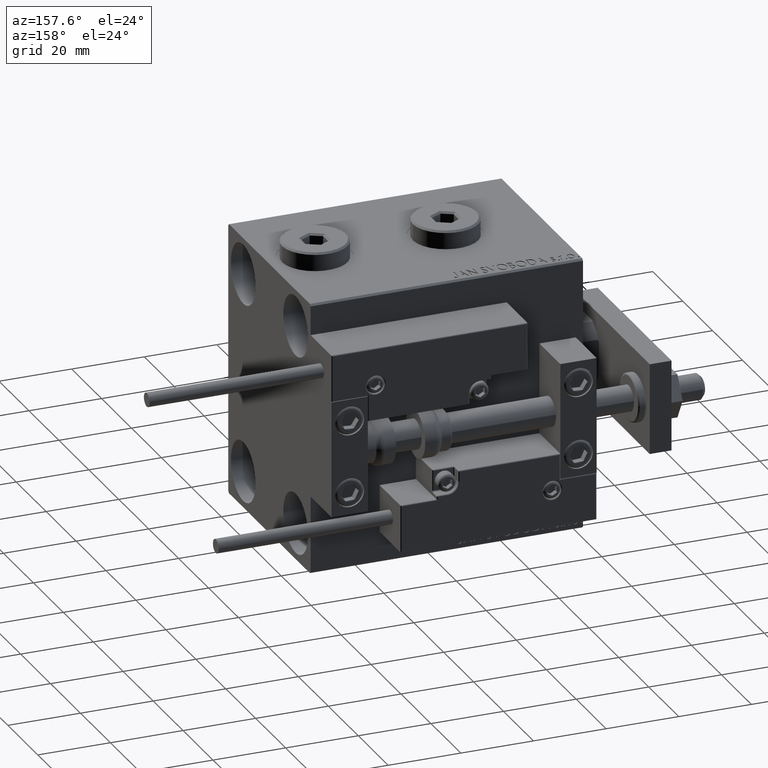
[diagram: clean part render]
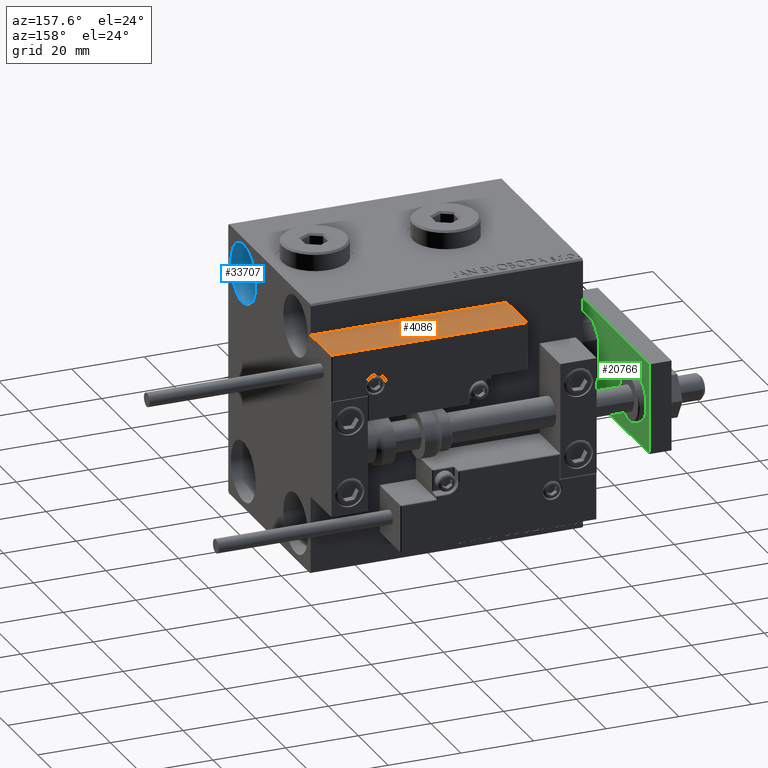
[diagram: same view with three faces highlighted in distinct colors, each labeled with its STEP entity id]
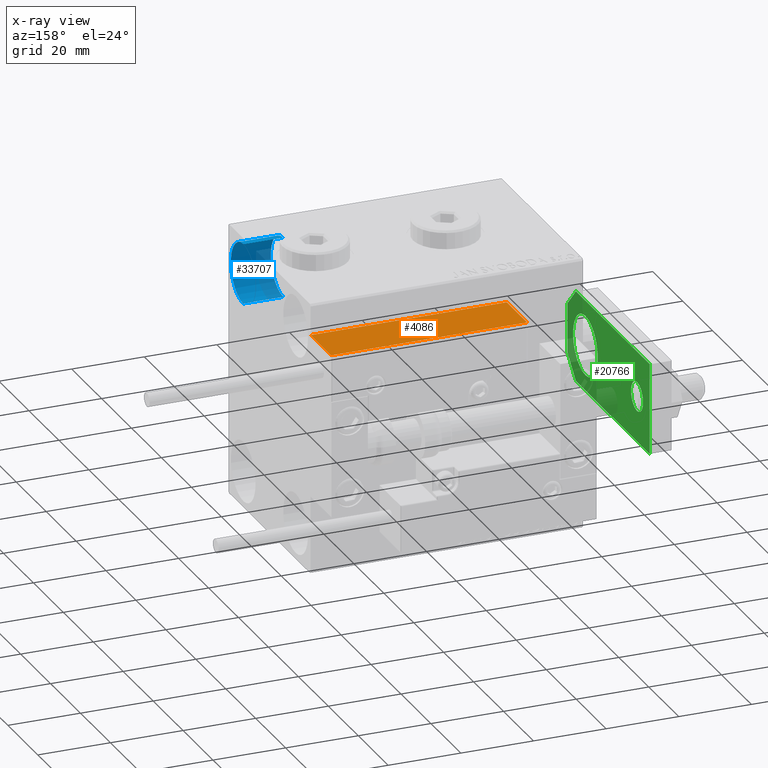
[diagram: x-ray of the same camera — body ghosted, the three highlighted faces saturated]
A machine part, auxiliary view with three faces highlighted in distinct colors.
The next image is the same camera in x-ray (body ghosted, the three faces saturated) — at least one of them is partly hidden behind the body in this view.
Their STEP definitions:

[orange] entity #4086 — the highlighted planar face has unit normal (-0, -0, -1).
#620 = VECTOR ( 'NONE', #38446, 1000.000000000000000 ) ;
#1401 = EDGE_CURVE ( 'NONE', #8684, #46098, #35144, .T. ) ;
#2224 = ORIENTED_EDGE ( 'NONE', *, *, #34071, .T. ) ;
#3558 = PLANE ( 'NONE',  #46044 ) ;
#4086 = ADVANCED_FACE ( 'NONE', ( #19187 ), #3558, .F. ) ;
#4357 = CARTESIAN_POINT ( 'NONE',  ( 27.00000000000006395, 20.00000000000001776, 13.70000000000000107 ) ) ;
#8684 = VERTEX_POINT ( 'NONE', #27659 ) ;
#8692 = CARTESIAN_POINT ( 'NONE',  ( -26.99999999999993605, 20.00000000000002132, 13.70000000000000107 ) ) ;
#15680 = LINE ( 'NONE', #38867, #16432 ) ;
#16236 = CARTESIAN_POINT ( 'NONE',  ( 27.00000000000006395, 20.00000000000001776, 0.000000000000000000 ) ) ;
#16432 = VECTOR ( 'NONE', #32051, 1000.000000000000000 ) ;
#16572 = VERTEX_POINT ( 'NONE', #8692 ) ;
#19018 = CARTESIAN_POINT ( 'NONE',  ( 27.00000000000006395, 20.00000000000001776, 14.00000000000000000 ) ) ;
#19187 = FACE_OUTER_BOUND ( 'NONE', #22357, .T. ) ;
#19434 = CARTESIAN_POINT ( 'NONE',  ( 27.00000000000006395, 20.00000000000001776, 14.00000000000000000 ) ) ;
#22357 = EDGE_LOOP ( 'NONE', ( #30367, #38868, #38669, #2224 ) ) ;
#22560 = LINE ( 'NONE', #42646, #620 ) ;
#24666 = CARTESIAN_POINT ( 'NONE',  ( -26.99999999999993605, 20.00000000000002132, 0.000000000000000000 ) ) ;
#27001 = DIRECTION ( 'NONE',  ( -6.424901762877063495E-17, -1.000000000000000000, 0.000000000000000000 ) ) ;
#27659 = CARTESIAN_POINT ( 'NONE',  ( 27.00000000000006395, 20.00000000000001776, 13.70000000000000107 ) ) ;
#30367 = ORIENTED_EDGE ( 'NONE', *, *, #51426, .F. ) ;
#31745 = VECTOR ( 'NONE', #43743, 1000.000000000000000 ) ;
#32051 = DIRECTION ( 'NONE',  ( -0.000000000000000000, -0.000000000000000000, -1.000000000000000000 ) ) ;
#34071 = EDGE_CURVE ( 'NONE', #46098, #43761, #22560, .T. ) ;
#35144 = LINE ( 'NONE', #19018, #31745 ) ;
#36647 = LINE ( 'NONE', #4357, #40369 ) ;
#38446 = DIRECTION ( 'NONE',  ( -1.000000000000000000, 6.424901762877062263E-17, 0.000000000000000000 ) ) ;
#38669 = ORIENTED_EDGE ( 'NONE', *, *, #1401, .T. ) ;
#38867 = CARTESIAN_POINT ( 'NONE',  ( -26.99999999999993605, 20.00000000000002132, 14.00000000000000000 ) ) ;
#38868 = ORIENTED_EDGE ( 'NONE', *, *, #46945, .T. ) ;
#40369 = VECTOR ( 'NONE', #44228, 1000.000000000000000 ) ;
#42646 = CARTESIAN_POINT ( 'NONE',  ( 27.00000000000006395, 20.00000000000001776, 0.000000000000000000 ) ) ;
#43743 = DIRECTION ( 'NONE',  ( -0.000000000000000000, -0.000000000000000000, -1.000000000000000000 ) ) ;
#43761 = VERTEX_POINT ( 'NONE', #24666 ) ;
#44228 = DIRECTION ( 'NONE',  ( 1.000000000000000000, -6.424901762877063495E-17, -0.000000000000000000 ) ) ;
#46044 = AXIS2_PLACEMENT_3D ( 'NONE', #19434, #27001, #46065 ) ;
#46065 = DIRECTION ( 'NONE',  ( 1.000000000000000000, -6.424901762877063495E-17, 0.000000000000000000 ) ) ;
#46098 = VERTEX_POINT ( 'NONE', #16236 ) ;
#46945 = EDGE_CURVE ( 'NONE', #16572, #8684, #36647, .T. ) ;
#51426 = EDGE_CURVE ( 'NONE', #16572, #43761, #15680, .T. ) ;

[blue] entity #33707 — the highlighted cylindrical surface (edge-blend (fillet) strip) has radius 8.25 mm, axis along (1, 0, 0).
#585 = CYLINDRICAL_SURFACE ( 'NONE', #48874, 8.249999999999996447 ) ;
#2178 = VECTOR ( 'NONE', #41681, 1000.000000000000000 ) ;
#3280 = CARTESIAN_POINT ( 'NONE',  ( 75.00000000000000000, -17.49999999999999645, 35.74999999999999289 ) ) ;
#9137 = EDGE_CURVE ( 'NONE', #43193, #22597, #15434, .T. ) ;
#9918 = CARTESIAN_POINT ( 'NONE',  ( 64.00000000000000000, -17.49999999999999645, 19.25000000000000000 ) ) ;
#10473 = AXIS2_PLACEMENT_3D ( 'NONE', #27368, #11739, #23691 ) ;
#10570 = CARTESIAN_POINT ( 'NONE',  ( 75.00000000000000000, -17.49999999999999645, 19.25000000000000000 ) ) ;
#11739 = DIRECTION ( 'NONE',  ( -1.000000000000000000, -0.000000000000000000, -0.000000000000000000 ) ) ;
#12261 = LINE ( 'NONE', #44307, #42473 ) ;
#12542 = ORIENTED_EDGE ( 'NONE', *, *, #45129, .T. ) ;
#15078 = ORIENTED_EDGE ( 'NONE', *, *, #38951, .T. ) ;
#15434 = CIRCLE ( 'NONE', #10473, 8.249999999999992895 ) ;
#16083 = CARTESIAN_POINT ( 'NONE',  ( 64.00000000000000000, -17.49999999999999645, 27.49999999999999645 ) ) ;
#16465 = CARTESIAN_POINT ( 'NONE',  ( 64.00000000000000000, -17.49999999999999645, 27.49999999999999645 ) ) ;
#16610 = DIRECTION ( 'NONE',  ( 0.000000000000000000, 0.000000000000000000, 1.000000000000000000 ) ) ;
#16935 = LINE ( 'NONE', #9918, #2178 ) ;
#17835 = CARTESIAN_POINT ( 'NONE',  ( 64.00000000000000000, -17.49999999999999645, 19.25000000000000000 ) ) ;
#18173 = ORIENTED_EDGE ( 'NONE', *, *, #47903, .F. ) ;
#20094 = FACE_OUTER_BOUND ( 'NONE', #34863, .T. ) ;
#22295 = AXIS2_PLACEMENT_3D ( 'NONE', #16083, #24148, #16610 ) ;
#22597 = VERTEX_POINT ( 'NONE', #3280 ) ;
#23691 = DIRECTION ( 'NONE',  ( 0.000000000000000000, 0.000000000000000000, 1.000000000000000000 ) ) ;
#24148 = DIRECTION ( 'NONE',  ( -1.000000000000000000, -0.000000000000000000, -0.000000000000000000 ) ) ;
#25981 = ORIENTED_EDGE ( 'NONE', *, *, #9137, .F. ) ;
#27368 = CARTESIAN_POINT ( 'NONE',  ( 75.00000000000000000, -17.49999999999999645, 27.49999999999999645 ) ) ;
#28939 = CIRCLE ( 'NONE', #22295, 8.249999999999992895 ) ;
#31808 = DIRECTION ( 'NONE',  ( 0.000000000000000000, 0.000000000000000000, -1.000000000000000000 ) ) ;
#32067 = DIRECTION ( 'NONE',  ( 1.000000000000000000, -0.000000000000000000, -0.000000000000000000 ) ) ;
#33707 = ADVANCED_FACE ( 'NONE', ( #20094 ), #585, .F. ) ;
#34863 = EDGE_LOOP ( 'NONE', ( #15078, #12542, #25981, #18173 ) ) ;
#35283 = VERTEX_POINT ( 'NONE', #17835 ) ;
#38951 = EDGE_CURVE ( 'NONE', #35283, #44272, #28939, .T. ) ;
#40373 = DIRECTION ( 'NONE',  ( 1.000000000000000000, -0.000000000000000000, -0.000000000000000000 ) ) ;
#41681 = DIRECTION ( 'NONE',  ( 1.000000000000000000, -0.000000000000000000, -0.000000000000000000 ) ) ;
#42473 = VECTOR ( 'NONE', #40373, 1000.000000000000000 ) ;
#43193 = VERTEX_POINT ( 'NONE', #10570 ) ;
#44272 = VERTEX_POINT ( 'NONE', #44834 ) ;
#44307 = CARTESIAN_POINT ( 'NONE',  ( 64.00000000000000000, -17.49999999999999645, 35.74999999999999289 ) ) ;
#44834 = CARTESIAN_POINT ( 'NONE',  ( 64.00000000000000000, -17.49999999999999645, 35.74999999999999289 ) ) ;
#45129 = EDGE_CURVE ( 'NONE', #44272, #22597, #12261, .T. ) ;
#47903 = EDGE_CURVE ( 'NONE', #35283, #43193, #16935, .T. ) ;
#48874 = AXIS2_PLACEMENT_3D ( 'NONE', #16465, #32067, #31808 ) ;

[green] entity #20766 — the highlighted planar face has unit normal (-1, 0, 0).
#219 = LINE ( 'NONE', #35643, #3307 ) ;
#427 = ORIENTED_EDGE ( 'NONE', *, *, #13813, .T. ) ;
#617 = LINE ( 'NONE', #27010, #4314 ) ;
#693 = EDGE_CURVE ( 'NONE', #47223, #49910, #617, .T. ) ;
#840 = LINE ( 'NONE', #12028, #16861 ) ;
#1076 = ORIENTED_EDGE ( 'NONE', *, *, #13275, .T. ) ;
#1402 = VERTEX_POINT ( 'NONE', #42741 ) ;
#1440 = CIRCLE ( 'NONE', #33858, 8.250000000000000000 ) ;
#1852 = CARTESIAN_POINT ( 'NONE',  ( 12.50000000000000355, 5.659999999999991260, 0.000000000000000000 ) ) ;
#2502 = DIRECTION ( 'NONE',  ( 0.000000000000000000, 0.000000000000000000, 1.000000000000000000 ) ) ;
#3173 = EDGE_CURVE ( 'NONE', #45598, #35289, #840, .T. ) ;
#3307 = VECTOR ( 'NONE', #16097, 1000.000000000000000 ) ;
#3327 = CARTESIAN_POINT ( 'NONE',  ( 6.839999999999998970, 4.814824860968089633E-32, 0.000000000000000000 ) ) ;
#4186 = DIRECTION ( 'NONE',  ( -0.000000000000000000, 0.000000000000000000, 1.000000000000000000 ) ) ;
#4314 = VECTOR ( 'NONE', #30669, 1000.000000000000000 ) ;
#4699 = CARTESIAN_POINT ( 'NONE',  ( 0.000000000000000000, 0.000000000000000000, 0.000000000000000000 ) ) ;
#9154 = ORIENTED_EDGE ( 'NONE', *, *, #16365, .T. ) ;
#9882 = VERTEX_POINT ( 'NONE', #50752 ) ;
#10200 = CARTESIAN_POINT ( 'NONE',  ( -12.50000000000000355, 5.660000000000005471, 0.000000000000000000 ) ) ;
#11240 = DIRECTION ( 'NONE',  ( -1.000000000000000000, 0.000000000000000000, 0.000000000000000000 ) ) ;
#11765 = DIRECTION ( 'NONE',  ( 0.000000000000000000, 0.000000000000000000, 1.000000000000000000 ) ) ;
#12028 = CARTESIAN_POINT ( 'NONE',  ( 12.50000000000000355, 4.814824860968089633E-32, 0.000000000000000000 ) ) ;
#12922 = DIRECTION ( 'NONE',  ( -9.462128050782584375E-17, -1.000000000000000000, 0.000000000000000000 ) ) ;
#13275 = EDGE_CURVE ( 'NONE', #45598, #49910, #21885, .T. ) ;
#13813 = EDGE_CURVE ( 'NONE', #9882, #32164, #21377, .T. ) ;
#16097 = DIRECTION ( 'NONE',  ( -0.7071067811865467956, 0.7071067811865483499, -0.000000000000000000 ) ) ;
#16147 = EDGE_CURVE ( 'NONE', #28598, #32536, #24364, .T. ) ;
#16283 = VECTOR ( 'NONE', #11240, 1000.000000000000000 ) ;
#16365 = EDGE_CURVE ( 'NONE', #1402, #17882, #44723, .T. ) ;
#16850 = CARTESIAN_POINT ( 'NONE',  ( -8.250000000000000000, 11.99999999999999645, 0.000000000000000000 ) ) ;
#16861 = VECTOR ( 'NONE', #24781, 1000.000000000000000 ) ;
#17882 = VERTEX_POINT ( 'NONE', #46897 ) ;
#18066 = CARTESIAN_POINT ( 'NONE',  ( -9.629649721936179265E-32, 11.99999999999999645, 0.000000000000000000 ) ) ;
#19810 = FACE_OUTER_BOUND ( 'NONE', #49080, .T. ) ;
#20766 = ADVANCED_FACE ( 'NONE', ( #19810, #32548, #28148 ), #32301, .F. ) ;
#21256 = ORIENTED_EDGE ( 'NONE', *, *, #37421, .T. ) ;
#21377 = CIRCLE ( 'NONE', #41369, 8.250000000000000000 ) ;
#21864 = EDGE_CURVE ( 'NONE', #17882, #1402, #46878, .T. ) ;
#21885 = LINE ( 'NONE', #1852, #24594 ) ;
#22274 = CARTESIAN_POINT ( 'NONE',  ( -1.432611055310774642E-16, 46.50000000000000000, 0.000000000000000000 ) ) ;
#22579 = ORIENTED_EDGE ( 'NONE', *, *, #16147, .F. ) ;
#23505 = AXIS2_PLACEMENT_3D ( 'NONE', #4699, #4186, #32030 ) ;
#24364 = LINE ( 'NONE', #44721, #39614 ) ;
#24594 = VECTOR ( 'NONE', #30224, 1000.000000000000114 ) ;
#24781 = DIRECTION ( 'NONE',  ( -6.308085367188389994E-17, 1.000000000000000000, 0.000000000000000000 ) ) ;
#27010 = CARTESIAN_POINT ( 'NONE',  ( -12.50000000000000355, 4.814824860968089633E-32, 0.000000000000000000 ) ) ;
#28148 = FACE_BOUND ( 'NONE', #41792, .T. ) ;
#28511 = CARTESIAN_POINT ( 'NONE',  ( -6.840000000000012292, 4.814824860968089633E-32, 0.000000000000000000 ) ) ;
#28598 = VERTEX_POINT ( 'NONE', #49057 ) ;
#29669 = ORIENTED_EDGE ( 'NONE', *, *, #47719, .F. ) ;
#30224 = DIRECTION ( 'NONE',  ( -0.7071067811865483499, -0.7071067811865465735, -0.000000000000000000 ) ) ;
#30669 = DIRECTION ( 'NONE',  ( 1.000000000000000000, 0.000000000000000000, 0.000000000000000000 ) ) ;
#31042 = DIRECTION ( 'NONE',  ( 1.000000000000000000, 0.000000000000000000, 0.000000000000000000 ) ) ;
#32030 = DIRECTION ( 'NONE',  ( 1.000000000000000000, 0.000000000000000000, 0.000000000000000000 ) ) ;
#32164 = VERTEX_POINT ( 'NONE', #16850 ) ;
#32301 = PLANE ( 'NONE',  #23505 ) ;
#32536 = VERTEX_POINT ( 'NONE', #10200 ) ;
#32548 = FACE_BOUND ( 'NONE', #48989, .T. ) ;
#33350 = DIRECTION ( 'NONE',  ( 1.000000000000000000, 0.000000000000000000, 0.000000000000000000 ) ) ;
#33858 = AXIS2_PLACEMENT_3D ( 'NONE', #37259, #36993, #33350 ) ;
#33952 = DIRECTION ( 'NONE',  ( 1.000000000000000000, 0.000000000000000000, 0.000000000000000000 ) ) ;
#35189 = AXIS2_PLACEMENT_3D ( 'NONE', #39359, #11765, #31042 ) ;
#35289 = VERTEX_POINT ( 'NONE', #37874 ) ;
#35449 = ORIENTED_EDGE ( 'NONE', *, *, #21864, .T. ) ;
#35643 = CARTESIAN_POINT ( 'NONE',  ( -6.840000000000012292, 4.814824860968089633E-32, 0.000000000000000000 ) ) ;
#36993 = DIRECTION ( 'NONE',  ( 0.000000000000000000, 0.000000000000000000, 1.000000000000000000 ) ) ;
#37175 = AXIS2_PLACEMENT_3D ( 'NONE', #22274, #2502, #50186 ) ;
#37259 = CARTESIAN_POINT ( 'NONE',  ( -9.629649721936179265E-32, 11.99999999999999645, 0.000000000000000000 ) ) ;
#37421 = EDGE_CURVE ( 'NONE', #32164, #9882, #1440, .T. ) ;
#37874 = CARTESIAN_POINT ( 'NONE',  ( 12.50000000000000000, 55.00000000000000000, 0.000000000000000000 ) ) ;
#38490 = ORIENTED_EDGE ( 'NONE', *, *, #3173, .F. ) ;
#39359 = CARTESIAN_POINT ( 'NONE',  ( -1.432611055310774642E-16, 46.50000000000000000, 0.000000000000000000 ) ) ;
#39614 = VECTOR ( 'NONE', #12922, 1000.000000000000000 ) ;
#40281 = ORIENTED_EDGE ( 'NONE', *, *, #41915, .T. ) ;
#41369 = AXIS2_PLACEMENT_3D ( 'NONE', #18066, #45957, #33952 ) ;
#41792 = EDGE_LOOP ( 'NONE', ( #21256, #427 ) ) ;
#41915 = EDGE_CURVE ( 'NONE', #47223, #32536, #219, .T. ) ;
#41987 = ORIENTED_EDGE ( 'NONE', *, *, #693, .F. ) ;
#42673 = CARTESIAN_POINT ( 'NONE',  ( 12.50000000000000355, 5.659999999999991260, 0.000000000000000000 ) ) ;
#42741 = CARTESIAN_POINT ( 'NONE',  ( 4.000000000000000888, 46.50000000000000000, 0.000000000000000000 ) ) ;
#44721 = CARTESIAN_POINT ( 'NONE',  ( -12.49999999999999822, 55.00000000000000000, 0.000000000000000000 ) ) ;
#44723 = CIRCLE ( 'NONE', #37175, 4.000000000000000888 ) ;
#45598 = VERTEX_POINT ( 'NONE', #42673 ) ;
#45957 = DIRECTION ( 'NONE',  ( 0.000000000000000000, 0.000000000000000000, 1.000000000000000000 ) ) ;
#46878 = CIRCLE ( 'NONE', #35189, 4.000000000000000888 ) ;
#46897 = CARTESIAN_POINT ( 'NONE',  ( -4.000000000000000888, 46.50000000000000000, 0.000000000000000000 ) ) ;
#46941 = CARTESIAN_POINT ( 'NONE',  ( 12.50000000000000000, 55.00000000000000000, 0.000000000000000000 ) ) ;
#47195 = LINE ( 'NONE', #46941, #16283 ) ;
#47223 = VERTEX_POINT ( 'NONE', #28511 ) ;
#47719 = EDGE_CURVE ( 'NONE', #35289, #28598, #47195, .T. ) ;
#48989 = EDGE_LOOP ( 'NONE', ( #35449, #9154 ) ) ;
#49057 = CARTESIAN_POINT ( 'NONE',  ( -12.49999999999999822, 55.00000000000000000, 0.000000000000000000 ) ) ;
#49080 = EDGE_LOOP ( 'NONE', ( #41987, #40281, #22579, #29669, #38490, #1076 ) ) ;
#49910 = VERTEX_POINT ( 'NONE', #3327 ) ;
#50186 = DIRECTION ( 'NONE',  ( 1.000000000000000000, 0.000000000000000000, 0.000000000000000000 ) ) ;
#50752 = CARTESIAN_POINT ( 'NONE',  ( 8.250000000000000000, 11.99999999999999822, 0.000000000000000000 ) ) ;